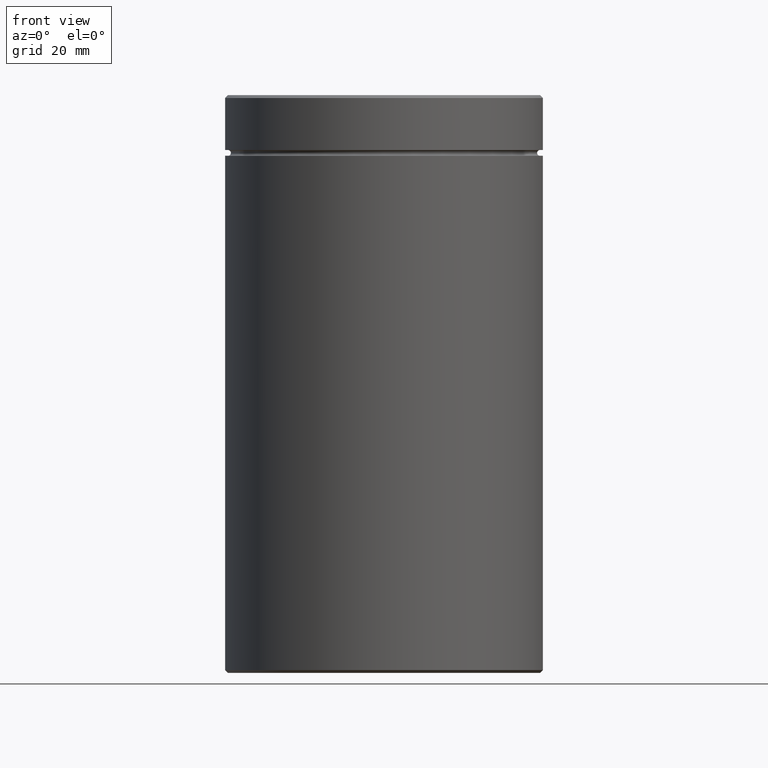
[diagram: clean part render]
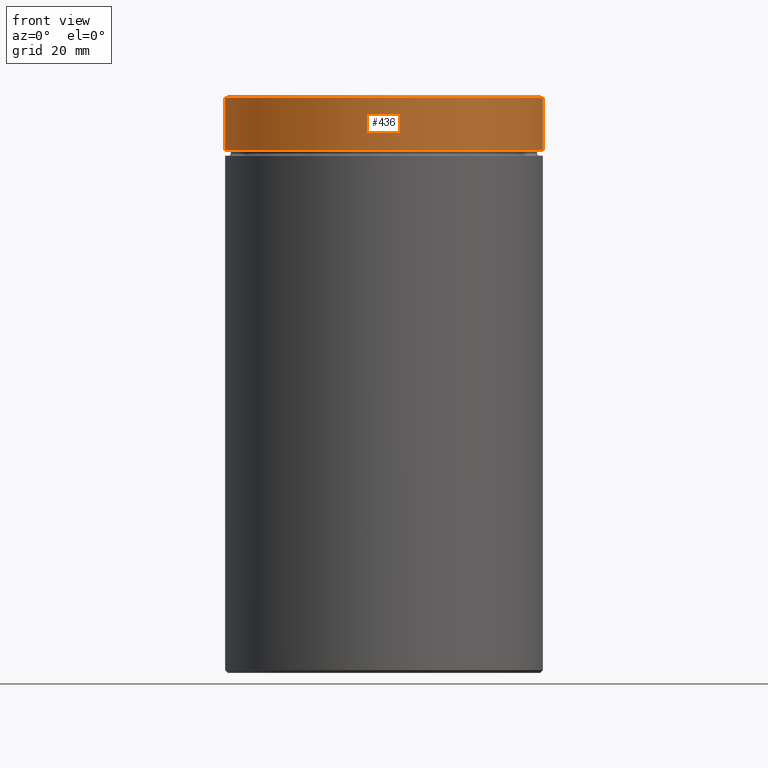
[diagram: same view with one face highlighted and labeled with its STEP entity id]
A machine part, front view. The second image highlights one B-rep face of the part: STEP entity #436.
In plain terms, the highlighted cylindrical surface (partial cylindrical patch) has radius 27.5 mm, axis along (-0, -0, 1).
Its self-contained STEP definition (entity closure, byte-faithful):
#3 = VECTOR ( 'NONE', #146, 1000.000000000000000 ) ;
#30 = EDGE_CURVE ( 'NONE', #175, #280, #129, .T. ) ;
#106 = AXIS2_PLACEMENT_3D ( 'NONE', #265, #563, #335 ) ;
#109 = CARTESIAN_POINT ( 'NONE',  ( 27.50000000000000000, 0.000000000000000000, 0.000000000000000000 ) ) ;
#122 = DIRECTION ( 'NONE',  ( -0.000000000000000000, -0.000000000000000000, 1.000000000000000000 ) ) ;
#129 = LINE ( 'NONE', #487, #304 ) ;
#134 = DIRECTION ( 'NONE',  ( 1.000000000000000000, 0.000000000000000000, 0.000000000000000000 ) ) ;
#137 = DIRECTION ( 'NONE',  ( -0.000000000000000000, -0.000000000000000000, 1.000000000000000000 ) ) ;
#146 = DIRECTION ( 'NONE',  ( -0.000000000000000000, -0.000000000000000000, 1.000000000000000000 ) ) ;
#161 = VERTEX_POINT ( 'NONE', #555 ) ;
#162 = EDGE_CURVE ( 'NONE', #201, #161, #193, .T. ) ;
#172 = DIRECTION ( 'NONE',  ( 1.000000000000000000, 0.000000000000000000, 0.000000000000000000 ) ) ;
#175 = VERTEX_POINT ( 'NONE', #351 ) ;
#193 = LINE ( 'NONE', #109, #3 ) ;
#195 = CIRCLE ( 'NONE', #423, 27.50000000000000000 ) ;
#201 = VERTEX_POINT ( 'NONE', #313 ) ;
#202 = CIRCLE ( 'NONE', #106, 27.50000000000000000 ) ;
#206 = ORIENTED_EDGE ( 'NONE', *, *, #30, .F. ) ;
#214 = CARTESIAN_POINT ( 'NONE',  ( 0.000000000000000000, 0.000000000000000000, 0.000000000000000000 ) ) ;
#216 = DIRECTION ( 'NONE',  ( 0.000000000000000000, 0.000000000000000000, -1.000000000000000000 ) ) ;
#222 = CARTESIAN_POINT ( 'NONE',  ( 0.000000000000000000, 0.000000000000000000, -0.5000000000000143219 ) ) ;
#265 = CARTESIAN_POINT ( 'NONE',  ( 0.000000000000000000, 0.000000000000000000, -9.500000000000000000 ) ) ;
#280 = VERTEX_POINT ( 'NONE', #359 ) ;
#304 = VECTOR ( 'NONE', #137, 1000.000000000000000 ) ;
#312 = FACE_OUTER_BOUND ( 'NONE', #479, .T. ) ;
#313 = CARTESIAN_POINT ( 'NONE',  ( 27.50000000000000000, 0.000000000000000000, -9.500000000000000000 ) ) ;
#335 = DIRECTION ( 'NONE',  ( 1.000000000000000000, 0.000000000000000000, 0.000000000000000000 ) ) ;
#351 = CARTESIAN_POINT ( 'NONE',  ( -27.50000000000000000, 3.367778697655221307E-15, -9.500000000000000000 ) ) ;
#359 = CARTESIAN_POINT ( 'NONE',  ( -27.50000000000000000, 3.367778697655221307E-15, -0.5000000000000143219 ) ) ;
#382 = EDGE_CURVE ( 'NONE', #175, #201, #202, .T. ) ;
#388 = CYLINDRICAL_SURFACE ( 'NONE', #390, 27.50000000000000000 ) ;
#390 = AXIS2_PLACEMENT_3D ( 'NONE', #214, #122, #134 ) ;
#399 = EDGE_CURVE ( 'NONE', #161, #280, #195, .T. ) ;
#422 = ORIENTED_EDGE ( 'NONE', *, *, #162, .T. ) ;
#423 = AXIS2_PLACEMENT_3D ( 'NONE', #222, #216, #172 ) ;
#436 = ADVANCED_FACE ( 'NONE', ( #312 ), #388, .T. ) ;
#447 = ORIENTED_EDGE ( 'NONE', *, *, #382, .T. ) ;
#479 = EDGE_LOOP ( 'NONE', ( #206, #447, #422, #521 ) ) ;
#487 = CARTESIAN_POINT ( 'NONE',  ( -27.50000000000000000, 3.367778697655221307E-15, 0.000000000000000000 ) ) ;
#521 = ORIENTED_EDGE ( 'NONE', *, *, #399, .T. ) ;
#555 = CARTESIAN_POINT ( 'NONE',  ( 27.50000000000000000, 0.000000000000000000, -0.5000000000000143219 ) ) ;
#563 = DIRECTION ( 'NONE',  ( -0.000000000000000000, -0.000000000000000000, 1.000000000000000000 ) ) ;